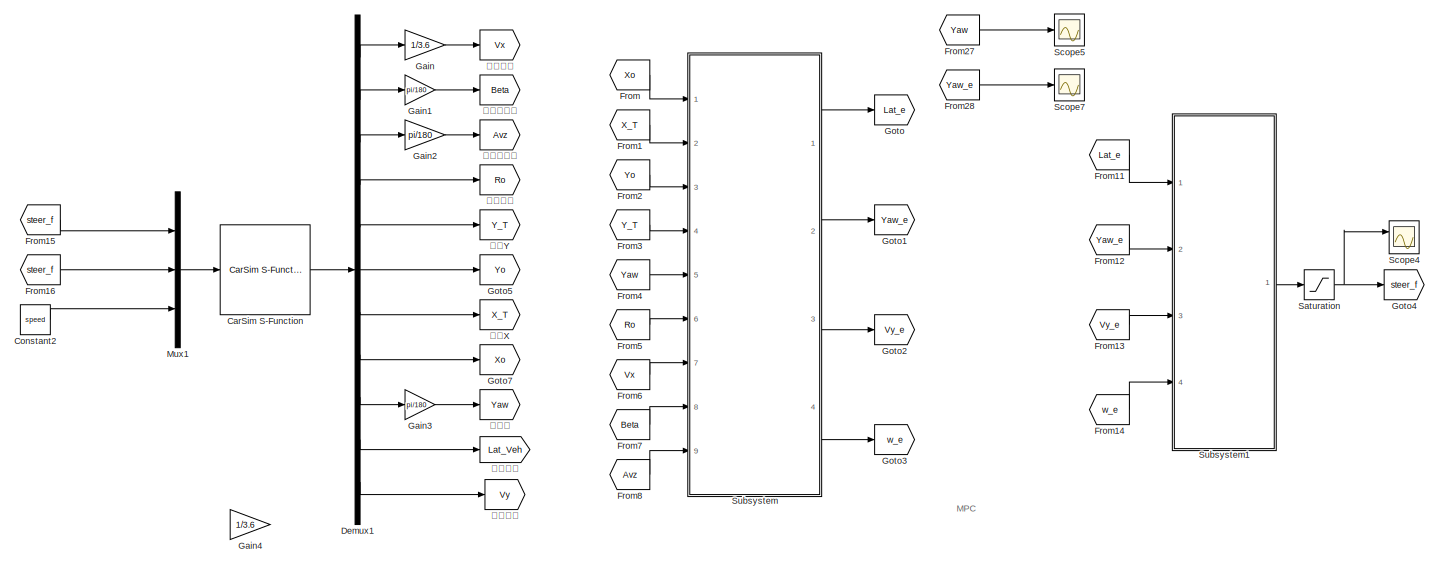
[diagram: root canvas - part 1/4, top left region]
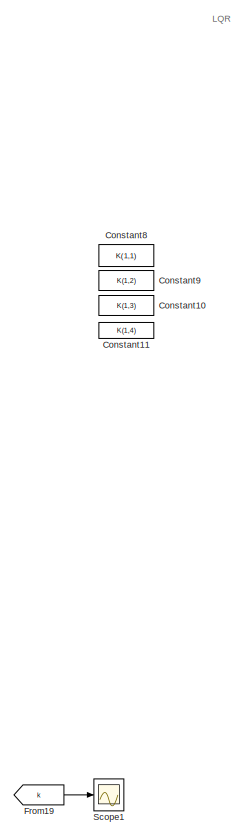
[diagram: root canvas - part 2/4, central region]
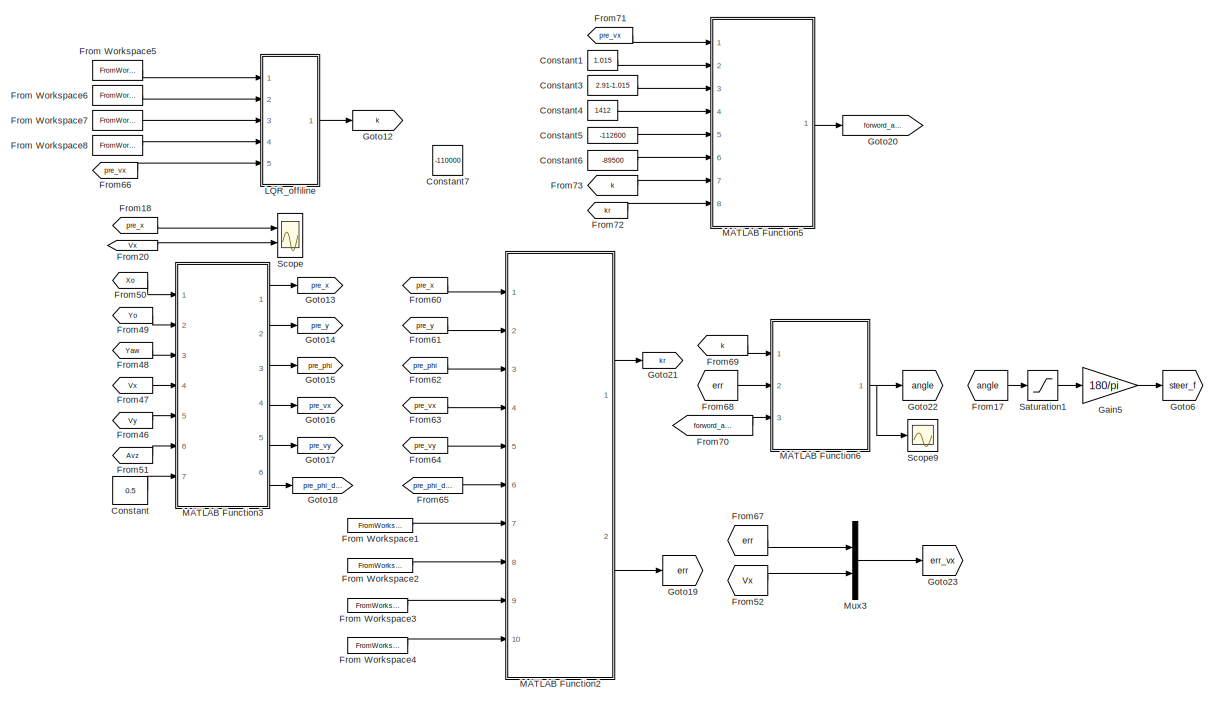
[diagram: root canvas - part 3/4, top right region]
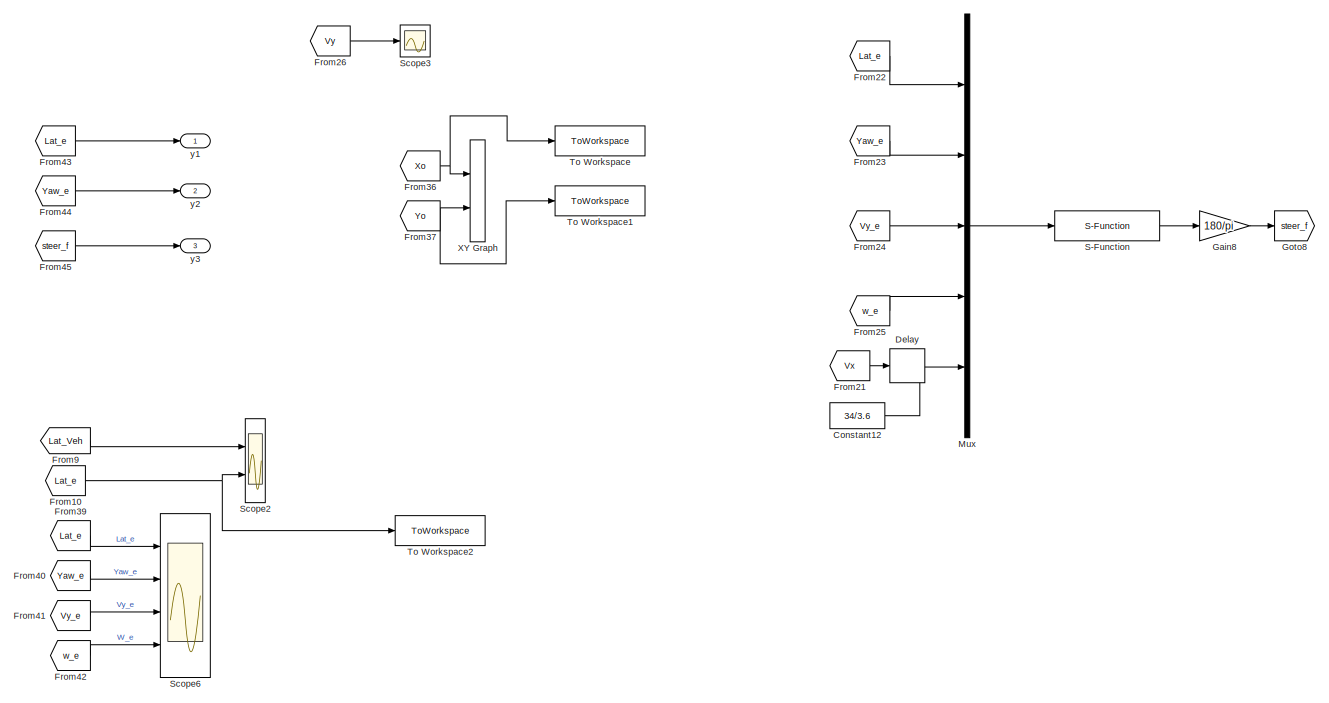
[diagram: root canvas - part 4/4, bottom left region]
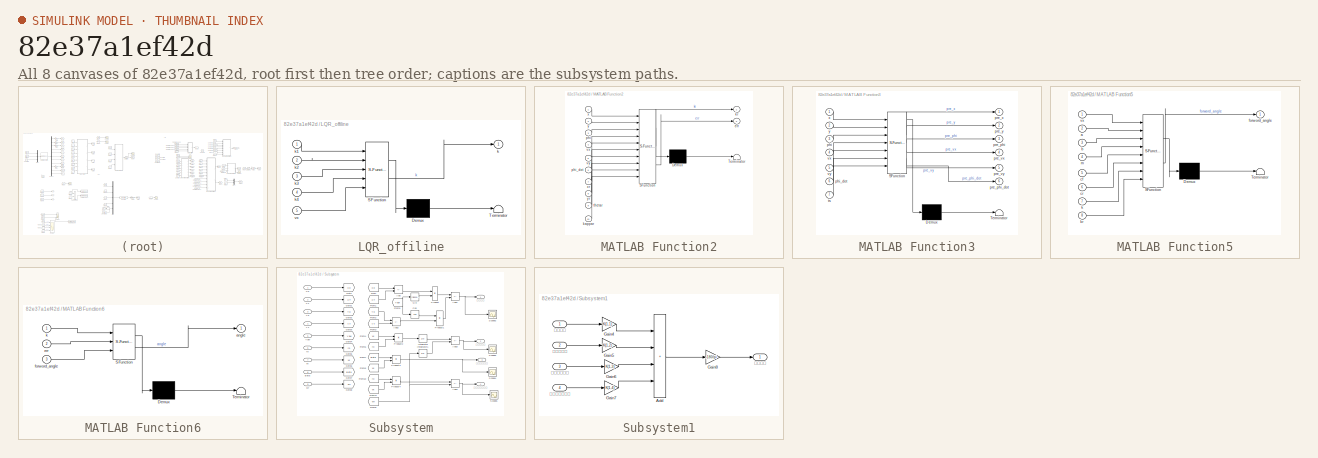
[diagram: thumbnail index - all 8 canvases of the model, root first then tree order]
MODEL slx_82e37a1ef42d
KIND model
CONFIG AbsTol = auto
CONFIG EnableMultiTasking = off
CONFIG FixedStep = auto
CONFIG MaxStep = auto
CONFIG MinStep = auto
CONFIG RelTol = 1e-3
CONFIG SampleTimeConstraint = Unconstrained
CONFIG SolverName = VariableStepAuto
CONFIG StartTime = 0.0
CONFIG StopTime = 4
BLOCK [Reference] CarSim S-Function  REF=Solver_SF/CarSim S-Function
  Ports = [1, 1]
  Priority = 1
  SourceBlock = Solver_SF/CarSim S-Function
  SourceProductName = CarSim S-Function
  SourceType = Vehicle math model library
BLOCK [Constant] Constant
  Commented = on
  Value = 0.5
BLOCK [Constant] Constant1
  Commented = on
  Value = 1.015
BLOCK [Constant] Constant10
  Commented = on
  Value = K(1,3)
BLOCK [Constant] Constant11
  Commented = on
  Value = K(1,4)
BLOCK [Constant] Constant12
  Commented = on
  Value = 34/3.6
BLOCK [Constant] Constant2
  Value = speed
BLOCK [Constant] Constant3
  Commented = on
  Value = 2.91-1.015
BLOCK [Constant] Constant4
  Commented = on
  Value = 1412
BLOCK [Constant] Constant5
  Commented = on
  Value = -112600
BLOCK [Constant] Constant6
  Commented = on
  Value = -89500
BLOCK [Constant] Constant7
  Commented = on
  Value = -110000
BLOCK [Constant] Constant8
  Commented = on
  Value = K(1,1)
BLOCK [Constant] Constant9
  Commented = on
  Value = K(1,2)
BLOCK [Delay] Delay
  Commented = on
  InputPortMap = u0
  Ports = [1, 1]
BLOCK [Demux] Demux1
  Outputs = 11
  Ports = [1, 11]
BLOCK [From] From
  GotoTag = Xo
BLOCK [FromWorkspace] From Workspace1
  Commented = on
  VariableName = xr
BLOCK [FromWorkspace] From Workspace2
  Commented = on
  VariableName = yr
BLOCK [FromWorkspace] From Workspace3
  Commented = on
  VariableName = thetar
BLOCK [FromWorkspace] From Workspace4
  Commented = on
  VariableName = kappar
BLOCK [FromWorkspace] From Workspace5
  Commented = on
  VariableName = k1
BLOCK [FromWorkspace] From Workspace6
  Commented = on
  VariableName = k2
BLOCK [FromWorkspace] From Workspace7
  Commented = on
  VariableName = k3
BLOCK [FromWorkspace] From Workspace8
  Commented = on
  VariableName = k4
BLOCK [From] From1
  GotoTag = X_T
BLOCK [From] From10
  GotoTag = Lat_e
BLOCK [From] From11
  GotoTag = Lat_e
BLOCK [From] From12
  GotoTag = Yaw_e
BLOCK [From] From13
  GotoTag = Vy_e
BLOCK [From] From14
  GotoTag = w_e
BLOCK [From] From15
  GotoTag = steer_f
BLOCK [From] From16
  GotoTag = steer_f
BLOCK [From] From17
  Commented = on
  GotoTag = angle
BLOCK [From] From18
  Commented = on
  GotoTag = pre_x
BLOCK [From] From19
  Commented = on
  GotoTag = k
BLOCK [From] From2
  GotoTag = Yo
BLOCK [From] From20
  Commented = on
  GotoTag = Vx
BLOCK [From] From21
  Commented = on
  GotoTag = Vx
BLOCK [From] From22
  Commented = on
  GotoTag = Lat_e
BLOCK [From] From23
  Commented = on
  GotoTag = Yaw_e
BLOCK [From] From24
  Commented = on
  GotoTag = Vy_e
BLOCK [From] From25
  Commented = on
  GotoTag = w_e
BLOCK [From] From26
  GotoTag = Vy
BLOCK [From] From27
  GotoTag = Yaw
BLOCK [From] From28
  GotoTag = Yaw_e
BLOCK [From] From3
  GotoTag = Y_T
BLOCK [From] From36
  GotoTag = Xo
BLOCK [From] From37
  GotoTag = Yo
BLOCK [From] From39
  GotoTag = Lat_e
BLOCK [From] From4
  GotoTag = Yaw
BLOCK [From] From40
  GotoTag = Yaw_e
BLOCK [From] From41
  GotoTag = Vy_e
BLOCK [From] From42
  GotoTag = w_e
BLOCK [From] From43
  GotoTag = Lat_e
BLOCK [From] From44
  GotoTag = Yaw_e
BLOCK [From] From45
  GotoTag = steer_f
BLOCK [From] From46
  Commented = on
  GotoTag = Vy
BLOCK [From] From47
  Commented = on
  GotoTag = Vx
BLOCK [From] From48
  Commented = on
  GotoTag = Yaw
BLOCK [From] From49
  Commented = on
  GotoTag = Yo
BLOCK [From] From5
  GotoTag = Ro
BLOCK [From] From50
  Commented = on
  GotoTag = Xo
BLOCK [From] From51
  Commented = on
  GotoTag = Avz
BLOCK [From] From52
  Commented = on
  GotoTag = Vx
BLOCK [From] From6
  GotoTag = Vx
BLOCK [From] From60
  Commented = on
  GotoTag = pre_x
BLOCK [From] From61
  Commented = on
  GotoTag = pre_y
BLOCK [From] From62
  Commented = on
  GotoTag = pre_phi
BLOCK [From] From63
  Commented = on
  GotoTag = pre_vx
BLOCK [From] From64
  Commented = on
  GotoTag = pre_vy
BLOCK [From] From65
  Commented = on
  GotoTag = pre_phi_dot
BLOCK [From] From66
  Commented = on
  GotoTag = pre_vx
BLOCK [From] From67
  Commented = on
  GotoTag = err
BLOCK [From] From68
  Commented = on
  GotoTag = err
BLOCK [From] From69
  Commented = on
  GotoTag = k
BLOCK [From] From7
  GotoTag = Beta
BLOCK [From] From70
  Commented = on
  GotoTag = forword_angle
BLOCK [From] From71
  Commented = on
  GotoTag = pre_vx
BLOCK [From] From72
  Commented = on
  GotoTag = kr
BLOCK [From] From73
  Commented = on
  GotoTag = k
BLOCK [From] From8
  GotoTag = Avz
BLOCK [From] From9
  GotoTag = Lat_Veh
BLOCK [Gain] Gain
  Gain = 1/3.6
BLOCK [Gain] Gain1
  Gain = pi/180
BLOCK [Gain] Gain2
  Gain = pi/180
BLOCK [Gain] Gain3
  Gain = pi/180
BLOCK [Gain] Gain4
  Gain = 1/3.6
BLOCK [Gain] Gain5
  Commented = on
  Gain = 180/pi
BLOCK [Gain] Gain8
  Commented = on
  Gain = 180/pi
BLOCK [Goto] Goto
  GotoTag = Lat_e
BLOCK [Goto] Goto1
  GotoTag = Yaw_e
BLOCK [Goto] Goto12
  Commented = on
  GotoTag = k
BLOCK [Goto] Goto13
  Commented = on
  GotoTag = pre_x
BLOCK [Goto] Goto14
  Commented = on
  GotoTag = pre_y
BLOCK [Goto] Goto15
  Commented = on
  GotoTag = pre_phi
BLOCK [Goto] Goto16
  Commented = on
  GotoTag = pre_vx
BLOCK [Goto] Goto17
  Commented = on
  GotoTag = pre_vy
BLOCK [Goto] Goto18
  Commented = on
  GotoTag = pre_phi_dot
BLOCK [Goto] Goto19
  Commented = on
  GotoTag = err
BLOCK [Goto] Goto2
  GotoTag = Vy_e
BLOCK [Goto] Goto20
  Commented = on
  GotoTag = forword_angle
BLOCK [Goto] Goto21
  Commented = on
  GotoTag = kr
BLOCK [Goto] Goto22
  Commented = on
  GotoTag = angle
BLOCK [Goto] Goto23
  Commented = on
  GotoTag = err_vx
BLOCK [Goto] Goto3
  GotoTag = w_e
BLOCK [Goto] Goto4
  GotoTag = steer_f
BLOCK [Goto] Goto5
  GotoTag = Yo
BLOCK [Goto] Goto6
  Commented = on
  GotoTag = steer_f
BLOCK [Goto] Goto7
  GotoTag = Xo
BLOCK [Goto] Goto8
  Commented = on
  GotoTag = steer_f
BLOCK [SubSystem] LQR_offiline
  Commented = on
  ErrorFcn = Stateflow.Translate.translate
  PermitHierarchicalResolution = ExplicitOnly
  Ports = [5, 1]
  RequestExecContextInheritance = off
  SFBlockType = MATLAB Function
  TreatAsAtomicUnit = on
BLOCK [Demux] LQR_offiline/ Demux 
  Outputs = 1
  Ports = [1, 1]
BLOCK [S-Function] LQR_offiline/ SFunction 
  EnableBusSupport = on
  FunctionName = sf_sfun
  PortCounts = [5 2]
  Ports = [5, 2]
  SFcnIsStateOwnerBlock = off
  SFunctionDeploymentMode = off
  Tag = Stateflow S-Function 8
BLOCK [Terminator] LQR_offiline/ Terminator 
BLOCK [Outport] LQR_offiline/k
BLOCK [Inport] LQR_offiline/k1
BLOCK [Inport] LQR_offiline/k2
  Port = 2
BLOCK [Inport] LQR_offiline/k3
  Port = 3
BLOCK [Inport] LQR_offiline/k4
  Port = 4
BLOCK [Inport] LQR_offiline/vx
  Port = 5
BLOCK [SubSystem] MATLAB Function2
  Commented = on
  ErrorFcn = Stateflow.Translate.translate
  PermitHierarchicalResolution = ExplicitOnly
  Ports = [10, 2]
  RequestExecContextInheritance = off
  SFBlockType = MATLAB Function
  TreatAsAtomicUnit = on
BLOCK [Demux] MATLAB Function2/ Demux 
  Outputs = 1
  Ports = [1, 1]
BLOCK [S-Function] MATLAB Function2/ SFunction 
  EnableBusSupport = on
  FunctionName = sf_sfun
  PortCounts = [10 3]
  Ports = [10, 3]
  SFcnIsStateOwnerBlock = off
  SFunctionDeploymentMode = off
  Tag = Stateflow S-Function 6
BLOCK [Terminator] MATLAB Function2/ Terminator 
BLOCK [Outport] MATLAB Function2/err
  Port = 2
BLOCK [Inport] MATLAB Function2/kappar
  Port = 10
BLOCK [Outport] MATLAB Function2/kr
BLOCK [Inport] MATLAB Function2/phi
  Port = 3
BLOCK [Inport] MATLAB Function2/phi_dot
  Port = 6
BLOCK [Inport] MATLAB Function2/thetar
  Port = 9
BLOCK [Inport] MATLAB Function2/vx
  Port = 4
BLOCK [Inport] MATLAB Function2/vy
  Port = 5
BLOCK [Inport] MATLAB Function2/x
BLOCK [Inport] MATLAB Function2/xr
  Port = 7
BLOCK [Inport] MATLAB Function2/y
  Port = 2
BLOCK [Inport] MATLAB Function2/yr
  Port = 8
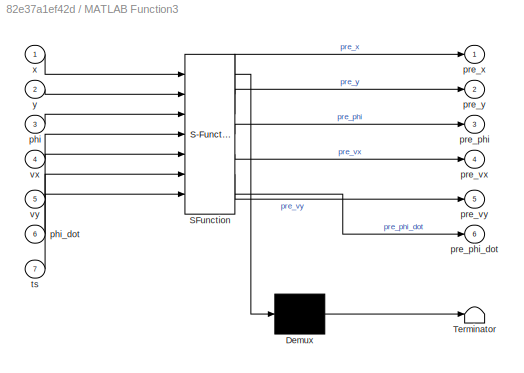
BLOCK [SubSystem] MATLAB Function3
  Commented = on
  ErrorFcn = Stateflow.Translate.translate
  PermitHierarchicalResolution = ExplicitOnly
  Ports = [7, 6]
  RequestExecContextInheritance = off
  SFBlockType = MATLAB Function
  TreatAsAtomicUnit = on
BLOCK [Demux] MATLAB Function3/ Demux 
  Outputs = 1
  Ports = [1, 1]
BLOCK [S-Function] MATLAB Function3/ SFunction 
  EnableBusSupport = on
  FunctionName = sf_sfun
  PortCounts = [7 7]
  Ports = [7, 7]
  SFcnIsStateOwnerBlock = off
  SFunctionDeploymentMode = off
  Tag = Stateflow S-Function 7
BLOCK [Terminator] MATLAB Function3/ Terminator 
BLOCK [Inport] MATLAB Function3/phi
  Port = 3
BLOCK [Inport] MATLAB Function3/phi_dot
  Port = 6
BLOCK [Outport] MATLAB Function3/pre_phi
  Port = 3
BLOCK [Outport] MATLAB Function3/pre_phi_dot
  Port = 6
BLOCK [Outport] MATLAB Function3/pre_vx
  Port = 4
BLOCK [Outport] MATLAB Function3/pre_vy
  Port = 5
BLOCK [Outport] MATLAB Function3/pre_x
BLOCK [Outport] MATLAB Function3/pre_y
  Port = 2
BLOCK [Inport] MATLAB Function3/ts
  Port = 7
BLOCK [Inport] MATLAB Function3/vx
  Port = 4
BLOCK [Inport] MATLAB Function3/vy
  Port = 5
BLOCK [Inport] MATLAB Function3/x
BLOCK [Inport] MATLAB Function3/y
  Port = 2
BLOCK [SubSystem] MATLAB Function5
  Commented = on
  ErrorFcn = Stateflow.Translate.translate
  PermitHierarchicalResolution = ExplicitOnly
  Ports = [8, 1]
  RequestExecContextInheritance = off
  SFBlockType = MATLAB Function
  TreatAsAtomicUnit = on
BLOCK [Demux] MATLAB Function5/ Demux 
  Outputs = 1
  Ports = [1, 1]
BLOCK [S-Function] MATLAB Function5/ SFunction 
  EnableBusSupport = on
  FunctionName = sf_sfun
  PortCounts = [8 2]
  Ports = [8, 2]
  SFcnIsStateOwnerBlock = off
  SFunctionDeploymentMode = off
  Tag = Stateflow S-Function 9
BLOCK [Terminator] MATLAB Function5/ Terminator 
BLOCK [Inport] MATLAB Function5/a
  Port = 2
BLOCK [Inport] MATLAB Function5/b
  Port = 3
BLOCK [Inport] MATLAB Function5/cf
  Port = 5
BLOCK [Inport] MATLAB Function5/cr
  Port = 6
BLOCK [Outport] MATLAB Function5/forword_angle
  VectorParamsAs1DForOutWhenUnconnected = off
BLOCK [Inport] MATLAB Function5/k
  Port = 7
BLOCK [Inport] MATLAB Function5/kr
  Port = 8
BLOCK [Inport] MATLAB Function5/m
  Port = 4
BLOCK [Inport] MATLAB Function5/vx
BLOCK [SubSystem] MATLAB Function6
  Commented = on
  ErrorFcn = Stateflow.Translate.translate
  PermitHierarchicalResolution = ExplicitOnly
  Ports = [3, 1]
  RequestExecContextInheritance = off
  SFBlockType = MATLAB Function
  TreatAsAtomicUnit = on
BLOCK [Demux] MATLAB Function6/ Demux 
  Outputs = 1
  Ports = [1, 1]
BLOCK [S-Function] MATLAB Function6/ SFunction 
  EnableBusSupport = on
  FunctionName = sf_sfun
  PortCounts = [3 2]
  Ports = [3, 2]
  SFcnIsStateOwnerBlock = off
  SFunctionDeploymentMode = off
  Tag = Stateflow S-Function 10
BLOCK [Terminator] MATLAB Function6/ Terminator 
BLOCK [Outport] MATLAB Function6/angle
BLOCK [Inport] MATLAB Function6/err
  Port = 2
BLOCK [Inport] MATLAB Function6/forword_angle
  Port = 3
BLOCK [Inport] MATLAB Function6/k
BLOCK [Mux] Mux
  Commented = on
  DisplayOption = bar
  Inputs = 5
  Ports = [5, 1]
BLOCK [Mux] Mux1
  DisplayOption = bar
  Inputs = 3
  Ports = [3, 1]
BLOCK [Mux] Mux3
  Commented = on
  DisplayOption = bar
  Inputs = 2
  Ports = [2, 1]
BLOCK [S-Function] S-Function
  Commented = on
  EnableBusSupport = off
  FunctionName = mpc_car_dong_li_xue
  Ports = [1, 1]
  SFcnIsStateOwnerBlock = off
  SFunctionDeploymentMode = off
BLOCK [Saturate] Saturation
  LowerLimit = -30
  UpperLimit = 30
BLOCK [Saturate] Saturation1
  Commented = on
  LowerLimit = -40
  UpperLimit = 40
BLOCK [Scope] Scope
  Commented = on
  Floating = off
  NumInputPorts = 2
  Ports = [2]
  ScopeSpecificationString = Simulink.scopes.TimeScopeBlockCfg('CurrentConfiguration', extmgr.ConfigurationSet(extmgr.Configuration('Core','General UI',true),extmgr.Configuration('Core','Source UI',true),extmgr.Configuration('Sources','WiredSimulink',true,'DataLoggingVariableName','ScopeData1'),extmgr.Configuration('Visuals','Time Domain',true,'SerializedDisplays',{struct('MinYLimReal','-1.07501','MaxYLimReal','9.67513','YLab...<+1403ch>
BLOCK [Scope] Scope1
  Commented = on
  Floating = off
  NumInputPorts = 1
  Ports = [1]
  ScopeSpecificationString = Simulink.scopes.TimeScopeBlockCfg('CurrentConfiguration', extmgr.ConfigurationSet(extmgr.Configuration('Core','General UI',true),extmgr.Configuration('Core','Source UI',true),extmgr.Configuration('Sources','WiredSimulink',true,'DataLoggingVariableName','ScopeData2'),extmgr.Configuration('Visuals','Time Domain',true,'SerializedDisplays',{struct('MinYLimReal','0.12559','MaxYLimReal','0.20808','YLabe...<+1461ch>
BLOCK [Scope] Scope2
  Floating = off
  NumInputPorts = 2
  Ports = [2]
  ScopeSpecificationString = Simulink.scopes.TimeScopeBlockCfg('CurrentConfiguration', extmgr.ConfigurationSet(extmgr.Configuration('Core','General UI',true),extmgr.Configuration('Core','Source UI',true),extmgr.Configuration('Sources','WiredSimulink',true,'DataLoggingVariableName','ScopeData2'),extmgr.Configuration('Visuals','Time Domain',true,'SerializedDisplays',{struct('MinYLimReal','-0.07342','MaxYLimReal','0.11658','YLab...<+1409ch>
BLOCK [Scope] Scope3
  Floating = off
  NumInputPorts = 1
  Ports = [1]
  ScopeSpecificationString = Simulink.scopes.TimeScopeBlockCfg('CurrentConfiguration', extmgr.ConfigurationSet(extmgr.Configuration('Core','General UI',true),extmgr.Configuration('Core','Source UI',true),extmgr.Configuration('Sources','WiredSimulink',true,'DataLoggingVariableName','ScopeData1'),extmgr.Configuration('Visuals','Time Domain',true,'SerializedDisplays',{struct('MinYLimReal','-0.00000007','MaxYLimReal','0.00000066'...<+1392ch>
BLOCK [Scope] Scope4
  Floating = off
  NumInputPorts = 2
  Ports = [2]
  ScopeSpecificationString = Simulink.scopes.TimeScopeBlockCfg('CurrentConfiguration', extmgr.ConfigurationSet(extmgr.Configuration('Core','General UI',true),extmgr.Configuration('Core','Source UI',true),extmgr.Configuration('Sources','WiredSimulink',true,'DataLoggingVariableName','ScopeData1'),extmgr.Configuration('Visuals','Time Domain',true,'SerializedDisplays',{struct('MinYLimReal','-1.29623','MaxYLimReal','11.66605','YLa...<+1409ch>
BLOCK [Scope] Scope5
  Floating = off
  NumInputPorts = 1
  Ports = [1]
  ScopeSpecificationString = Simulink.scopes.TimeScopeBlockCfg('CurrentConfiguration', extmgr.ConfigurationSet(extmgr.Configuration('Core','General UI',true),extmgr.Configuration('Core','Source UI',true),extmgr.Configuration('Sources','WiredSimulink',true,'DataLoggingVariableName','ScopeData1'),extmgr.Configuration('Visuals','Time Domain',true,'SerializedDisplays',{struct('MinYLimReal','-0.08246','MaxYLimReal','0.74213','YLab...<+1364ch>
BLOCK [Scope] Scope6
  Floating = off
  NumInputPorts = 4
  Ports = [4]
  ScopeSpecificationString = Simulink.scopes.TimeScopeBlockCfg('CurrentConfiguration', extmgr.ConfigurationSet(extmgr.Configuration('Core','General UI',true),extmgr.Configuration('Core','Source UI',true),extmgr.Configuration('Sources','WiredSimulink',true,'DataLoggingVariableName','ScopeData3'),extmgr.Configuration('Visuals','Time Domain',true,'SerializedDisplays',{struct('MinYLimReal','-0.25213','MaxYLimReal','0.41731','YLab...<+1412ch>
BLOCK [Scope] Scope7
  Floating = off
  NumInputPorts = 1
  Ports = [1]
  ScopeSpecificationString = Simulink.scopes.TimeScopeBlockCfg('CurrentConfiguration', extmgr.ConfigurationSet(extmgr.Configuration('Core','General UI',true),extmgr.Configuration('Core','Source UI',true),extmgr.Configuration('Sources','WiredSimulink',true,'DataLoggingVariableName','ScopeData2'),extmgr.Configuration('Visuals','Time Domain',true,'SerializedDisplays',{struct('MinYLimReal','-0.08249','MaxYLimReal','0.01507','YLab...<+1370ch>
BLOCK [Scope] Scope9
  Commented = on
  Floating = off
  NumInputPorts = 1
  Ports = [1]
  ScopeSpecificationString = Simulink.scopes.TimeScopeBlockCfg('CurrentConfiguration', extmgr.ConfigurationSet(extmgr.Configuration('Core','General UI',true),extmgr.Configuration('Core','Source UI',true),extmgr.Configuration('Sources','WiredSimulink',true,'DataLoggingVariableName','ScopeData1'),extmgr.Configuration('Visuals','Time Domain',true,'SerializedDisplays',{struct('MinYLimReal','-3.56779','MaxYLimReal','3.66195','YLab...<+1452ch>
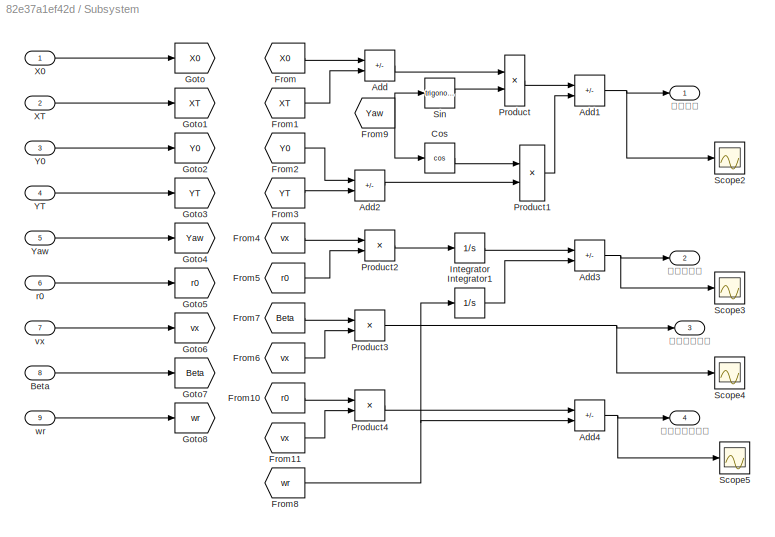
BLOCK [SubSystem] Subsystem
  Ports = [9, 4]
  RequestExecContextInheritance = off
BLOCK [Sum] Subsystem/Add
  IconShape = rectangular
  Inputs = +-
  Ports = [2, 1]
BLOCK [Sum] Subsystem/Add1
  IconShape = rectangular
  Inputs = -+
  Ports = [2, 1]
BLOCK [Sum] Subsystem/Add2
  IconShape = rectangular
  Inputs = +-
  Ports = [2, 1]
BLOCK [Sum] Subsystem/Add3
  IconShape = rectangular
  Inputs = -+
  Ports = [2, 1]
BLOCK [Sum] Subsystem/Add4
  IconShape = rectangular
  Inputs = -+
  Ports = [2, 1]
BLOCK [Inport] Subsystem/Beta
  Port = 8
BLOCK [Trigonometry] Subsystem/Cos
  Operator = cos
  Ports = [1, 1]
BLOCK [From] Subsystem/From
  GotoTag = X0
BLOCK [From] Subsystem/From1
  GotoTag = XT
BLOCK [From] Subsystem/From10
  GotoTag = r0
BLOCK [From] Subsystem/From11
  GotoTag = vx
BLOCK [From] Subsystem/From2
  GotoTag = Y0
BLOCK [From] Subsystem/From3
  GotoTag = YT
BLOCK [From] Subsystem/From4
  GotoTag = vx
BLOCK [From] Subsystem/From5
  GotoTag = r0
BLOCK [From] Subsystem/From6
  GotoTag = vx
BLOCK [From] Subsystem/From7
  GotoTag = Beta
BLOCK [From] Subsystem/From8
  GotoTag = wr
BLOCK [From] Subsystem/From9
  GotoTag = Yaw
BLOCK [Goto] Subsystem/Goto
  GotoTag = X0
BLOCK [Goto] Subsystem/Goto1
  GotoTag = XT
BLOCK [Goto] Subsystem/Goto2
  GotoTag = Y0
BLOCK [Goto] Subsystem/Goto3
  GotoTag = YT
BLOCK [Goto] Subsystem/Goto4
  GotoTag = Yaw
BLOCK [Goto] Subsystem/Goto5
  GotoTag = r0
BLOCK [Goto] Subsystem/Goto6
  GotoTag = vx
BLOCK [Goto] Subsystem/Goto7
  GotoTag = Beta
BLOCK [Goto] Subsystem/Goto8
  GotoTag = wr
BLOCK [Integrator] Subsystem/Integrator
  Ports = [1, 1]
BLOCK [Integrator] Subsystem/Integrator1
  Ports = [1, 1]
BLOCK [Product] Subsystem/Product
  Ports = [2, 1]
BLOCK [Product] Subsystem/Product1
  Ports = [2, 1]
BLOCK [Product] Subsystem/Product2
  Ports = [2, 1]
BLOCK [Product] Subsystem/Product3
  Ports = [2, 1]
BLOCK [Product] Subsystem/Product4
  Ports = [2, 1]
BLOCK [Scope] Subsystem/Scope2
  Floating = off
  NumInputPorts = 1
  Ports = [1]
  ScopeSpecificationString = Simulink.scopes.TimeScopeBlockCfg('CurrentConfiguration', extmgr.ConfigurationSet(extmgr.Configuration('Core','General UI',true),extmgr.Configuration('Core','Source UI',true),extmgr.Configuration('Sources','WiredSimulink',true,'DataLoggingVariableName','ScopeData1'),extmgr.Configuration('Visuals','Time Domain',true,'SerializedDisplays',{struct('MinYLimReal','-2.03043','MaxYLimReal','2.21979','YLab...<+1363ch>
BLOCK [Scope] Subsystem/Scope3
  Floating = off
  NumInputPorts = 1
  Ports = [1]
  ScopeSpecificationString = Simulink.scopes.TimeScopeBlockCfg('CurrentConfiguration', extmgr.ConfigurationSet(extmgr.Configuration('Core','General UI',true),extmgr.Configuration('Core','Source UI',true),extmgr.Configuration('Sources','WiredSimulink',true,'DataLoggingVariableName','ScopeData2'),extmgr.Configuration('Visuals','Time Domain',true,'SerializedDisplays',{struct('MinYLimReal','-0.25737','MaxYLimReal','0.23589','YLab...<+1363ch>
BLOCK [Scope] Subsystem/Scope4
  Floating = off
  NumInputPorts = 1
  Ports = [1]
  ScopeSpecificationString = Simulink.scopes.TimeScopeBlockCfg('CurrentConfiguration', extmgr.ConfigurationSet(extmgr.Configuration('Core','General UI',true),extmgr.Configuration('Core','Source UI',true),extmgr.Configuration('Sources','WiredSimulink',true,'DataLoggingVariableName','ScopeData3'),extmgr.Configuration('Visuals','Time Domain',true),extmgr.Configuration('Tools','Plot Navigation',true),extmgr.Configuration('Tools',...<+40ch>
BLOCK [Scope] Subsystem/Scope5
  Floating = off
  NumInputPorts = 1
  Ports = [1]
  ScopeSpecificationString = Simulink.scopes.TimeScopeBlockCfg('CurrentConfiguration', extmgr.ConfigurationSet(extmgr.Configuration('Core','General UI',true),extmgr.Configuration('Core','Source UI',true),extmgr.Configuration('Sources','WiredSimulink',true,'DataLoggingVariableName','ScopeData4'),extmgr.Configuration('Visuals','Time Domain',true),extmgr.Configuration('Tools','Plot Navigation',true),extmgr.Configuration('Tools',...<+40ch>
BLOCK [Trigonometry] Subsystem/Sin
  Ports = [1, 1]
BLOCK [Inport] Subsystem/X0
BLOCK [Inport] Subsystem/XT
  Port = 2
BLOCK [Inport] Subsystem/Y0
  Port = 3
BLOCK [Inport] Subsystem/YT
  Port = 4
BLOCK [Inport] Subsystem/Yaw
  Port = 5
BLOCK [Inport] Subsystem/r0
  Port = 6
BLOCK [Inport] Subsystem/vx
  Port = 7
BLOCK [Inport] Subsystem/wr
  Port = 9
BLOCK [Outport] Subsystem/侧向速度偏差
  Port = 3
BLOCK [Outport] Subsystem/横向偏差
BLOCK [Outport] Subsystem/横摆角速度偏差
  Port = 4
BLOCK [Outport] Subsystem/航向角偏差
  Port = 2
BLOCK [SubSystem] Subsystem1
  Ports = [4, 1]
  RequestExecContextInheritance = off
BLOCK [Sum] Subsystem1/Add
  IconShape = rectangular
  Inputs = ++++
  Ports = [4, 1]
BLOCK [Gain] Subsystem1/Gain4
  Gain = K(1,1)
BLOCK [Gain] Subsystem1/Gain5
  Gain = K(1,2)
BLOCK [Gain] Subsystem1/Gain6
  Gain = K(1,3)
BLOCK [Gain] Subsystem1/Gain7
  Gain = K(1,4)
BLOCK [Gain] Subsystem1/Gain8
  Gain = -180/pi
BLOCK [Inport] Subsystem1/侧向速度偏差
  Port = 3
BLOCK [Outport] Subsystem1/前轮转角
BLOCK [Inport] Subsystem1/横向偏差
BLOCK [Inport] Subsystem1/横摆角速度偏差
  Port = 4
BLOCK [Inport] Subsystem1/航向角偏差
  Port = 2
BLOCK [ToWorkspace] To Workspace
  FixptAsFi = on
  MaxDataPoints = inf
  Ports = [1]
  SampleTime = -1
  Save2DSignal = 2-D array (concatenate along first dimension)
  VariableName = xo
BLOCK [ToWorkspace] To Workspace1
  FixptAsFi = on
  MaxDataPoints = inf
  Ports = [1]
  SampleTime = -1
  Save2DSignal = 2-D array (concatenate along first dimension)
  VariableName = yo
BLOCK [ToWorkspace] To Workspace2
  FixptAsFi = on
  MaxDataPoints = inf
  Ports = [1]
  SampleTime = -1
  Save2DSignal = 2-D array (concatenate along first dimension)
  VariableName = lat_e
BLOCK [Record] XY Graph
  CompatibilityTag = XY
  FileSettingsInternal = {"entries":[{"content":{"excelSettings":{"content":{},"type":"Streamout.ExcelSettings"}},"type":"Streamout.FileSettingStorage","uuid":""}],"packageUris":["http:\/\/schema.mathworks.com\/mf0\/streamout_blocks\/R2020a"],"version":"1.0"}
  Layout = [1 1]
  Ports = [2]
  SignalsInternal = {"entries":[{"content":{"signals":[{"content":{"blockPath":[],"channel":[],"dimensions":[1],"domain":"","lineColor":"#fe330a","plots":[],"port":1,"sid":[""],"signalID":1067719,"signalName":"From36"},"type":"RecordBlkView.Signal","uuid":""},{"content":{"blockPath":[],"channel":[],"dimensions":[1],"domain":"","lineColor":"#22b573","plots":[],"port":2,"sid":[""],"signalID":1067723,"signalName":"From3...<+190ch>
  VisualizationBindings = {"xyplotplugin":{"info":[{"series":[],"subplotID":1}]}}
BLOCK [Outport] y1
BLOCK [Outport] y2
  Port = 2
BLOCK [Outport] y3
  Port = 3
BLOCK [Goto] 横向误差
  GotoTag = Lat_Veh
BLOCK [Goto] 横向车速
  GotoTag = Vy
BLOCK [Goto] 横摆角速度
  GotoTag = Avz
BLOCK [Goto] 目标X
  GotoTag = X_T
BLOCK [Goto] 目标Y
  GotoTag = Y_T
BLOCK [Goto] 纵向车速
  GotoTag = Vx
BLOCK [Goto] 航向角
  GotoTag = Yaw
BLOCK [Goto] 质心侧偏角
  GotoTag = Beta
BLOCK [Goto] 路径曲率
  GotoTag = Ro
ANNOTATION (root): LQR
ANNOTATION (root): MPC
LINE CarSim S-Function:1 -> Demux1:1
LINE Constant12:1 -> Mux:5
LINE Constant1:1 -> MATLAB Function5:2
LINE Constant2:1 -> Mux1:3
LINE Constant3:1 -> MATLAB Function5:3
LINE Constant4:1 -> MATLAB Function5:4
LINE Constant5:1 -> MATLAB Function5:5
LINE Constant6:1 -> MATLAB Function5:6
LINE Constant:1 -> MATLAB Function3:7
LINE Demux1:1 -> Gain:1
LINE Demux1:10 -> 横向误差:1
LINE Demux1:11 -> 横向车速:1
LINE Demux1:2 -> Gain1:1
LINE Demux1:3 -> Gain2:1
LINE Demux1:4 -> 路径曲率:1
LINE Demux1:5 -> 目标Y:1
LINE Demux1:6 -> Goto5:1
LINE Demux1:7 -> 目标X:1
LINE Demux1:8 -> Goto7:1
LINE Demux1:9 -> Gain3:1
LINE From Workspace1:1 -> MATLAB Function2:7
LINE From Workspace2:1 -> MATLAB Function2:8
LINE From Workspace3:1 -> MATLAB Function2:9
LINE From Workspace4:1 -> MATLAB Function2:10
LINE From Workspace5:1 -> LQR_offiline:1
LINE From Workspace6:1 -> LQR_offiline:2
LINE From Workspace7:1 -> LQR_offiline:3
LINE From Workspace8:1 -> LQR_offiline:4
NET From10:1 -> Scope2:2, To Workspace2:1
LINE From11:1 -> Subsystem1:1
LINE From12:1 -> Subsystem1:2
LINE From13:1 -> Subsystem1:3
LINE From14:1 -> Subsystem1:4
LINE From15:1 -> Mux1:1
LINE From16:1 -> Mux1:2
LINE From17:1 -> Saturation1:1
LINE From18:1 -> Scope:1
LINE From19:1 -> Scope1:1
LINE From1:1 -> Subsystem:2
LINE From20:1 -> Scope:2
LINE From21:1 -> Delay:1
LINE From22:1 -> Mux:1
LINE From23:1 -> Mux:2
LINE From24:1 -> Mux:3
LINE From25:1 -> Mux:4
LINE From26:1 -> Scope3:1
LINE From27:1 -> Scope5:1
LINE From28:1 -> Scope7:1
LINE From2:1 -> Subsystem:3
NET From36:1 -> To Workspace:1, XY Graph:1
NET From37:1 -> To Workspace1:1, XY Graph:2
LINE From39:1 -> Scope6:1
LINE From3:1 -> Subsystem:4
LINE From40:1 -> Scope6:2
LINE From41:1 -> Scope6:3
LINE From42:1 -> Scope6:4
LINE From43:1 -> y1:1
LINE From44:1 -> y2:1
LINE From45:1 -> y3:1
LINE From46:1 -> MATLAB Function3:5
LINE From47:1 -> MATLAB Function3:4
LINE From48:1 -> MATLAB Function3:3
LINE From49:1 -> MATLAB Function3:2
LINE From4:1 -> Subsystem:5
LINE From50:1 -> MATLAB Function3:1
LINE From51:1 -> MATLAB Function3:6
LINE From52:1 -> Mux3:2
LINE From5:1 -> Subsystem:6
LINE From60:1 -> MATLAB Function2:1
LINE From61:1 -> MATLAB Function2:2
LINE From62:1 -> MATLAB Function2:3
LINE From63:1 -> MATLAB Function2:4
LINE From64:1 -> MATLAB Function2:5
LINE From65:1 -> MATLAB Function2:6
LINE From66:1 -> LQR_offiline:5
LINE From67:1 -> Mux3:1
LINE From68:1 -> MATLAB Function6:2
LINE From69:1 -> MATLAB Function6:1
LINE From6:1 -> Subsystem:7
LINE From70:1 -> MATLAB Function6:3
LINE From71:1 -> MATLAB Function5:1
LINE From72:1 -> MATLAB Function5:8
LINE From73:1 -> MATLAB Function5:7
LINE From7:1 -> Subsystem:8
LINE From8:1 -> Subsystem:9
LINE From9:1 -> Scope2:1
LINE From:1 -> Subsystem:1
LINE Gain1:1 -> 质心侧偏角:1
LINE Gain2:1 -> 横摆角速度:1
LINE Gain3:1 -> 航向角:1
LINE Gain5:1 -> Goto6:1
LINE Gain8:1 -> Goto8:1
LINE Gain:1 -> 纵向车速:1
LINE LQR_offiline:1 -> Goto12:1
LINE MATLAB Function2:1 -> Goto21:1
LINE MATLAB Function2:2 -> Goto19:1
LINE MATLAB Function3:1 -> Goto13:1
LINE MATLAB Function3:2 -> Goto14:1
LINE MATLAB Function3:3 -> Goto15:1
LINE MATLAB Function3:4 -> Goto16:1
LINE MATLAB Function3:5 -> Goto17:1
LINE MATLAB Function3:6 -> Goto18:1
LINE MATLAB Function5:1 -> Goto20:1
NET MATLAB Function6:1 -> Goto22:1, Scope9:1
LINE Mux1:1 -> CarSim S-Function:1
LINE Mux3:1 -> Goto23:1
LINE Mux:1 -> S-Function:1
LINE S-Function:1 -> Gain8:1
LINE Saturation1:1 -> Gain5:1
NET Saturation:1 -> Goto4:1, Scope4:1
NET Subsystem/Add1:1 -> Subsystem/Scope2:1, Subsystem/横向偏差:1
LINE Subsystem/Add2:1 -> Subsystem/Product1:2
NET Subsystem/Add3:1 -> Subsystem/Scope3:1, Subsystem/航向角偏差:1
NET Subsystem/Add4:1 -> Subsystem/Scope5:1, Subsystem/横摆角速度偏差:1
LINE Subsystem/Add:1 -> Subsystem/Product:1
LINE Subsystem/Beta:1 -> Subsystem/Goto7:1
LINE Subsystem/Cos:1 -> Subsystem/Product1:1
LINE Subsystem/From10:1 -> Subsystem/Product4:1
LINE Subsystem/From11:1 -> Subsystem/Product4:2
LINE Subsystem/From1:1 -> Subsystem/Add:2
LINE Subsystem/From2:1 -> Subsystem/Add2:1
LINE Subsystem/From3:1 -> Subsystem/Add2:2
LINE Subsystem/From4:1 -> Subsystem/Product2:1
LINE Subsystem/From5:1 -> Subsystem/Product2:2
LINE Subsystem/From6:1 -> Subsystem/Product3:2
LINE Subsystem/From7:1 -> Subsystem/Product3:1
NET Subsystem/From8:1 -> Subsystem/Add4:2, Subsystem/Integrator1:1
NET Subsystem/From9:1 -> Subsystem/Cos:1, Subsystem/Sin:1
LINE Subsystem/From:1 -> Subsystem/Add:1
LINE Subsystem/Integrator1:1 -> Subsystem/Add3:2
LINE Subsystem/Integrator:1 -> Subsystem/Add3:1
LINE Subsystem/Product1:1 -> Subsystem/Add1:2
LINE Subsystem/Product2:1 -> Subsystem/Integrator:1
NET Subsystem/Product3:1 -> Subsystem/Scope4:1, Subsystem/侧向速度偏差:1
LINE Subsystem/Product4:1 -> Subsystem/Add4:1
LINE Subsystem/Product:1 -> Subsystem/Add1:1
LINE Subsystem/Sin:1 -> Subsystem/Product:2
LINE Subsystem/X0:1 -> Subsystem/Goto:1
LINE Subsystem/XT:1 -> Subsystem/Goto1:1
LINE Subsystem/Y0:1 -> Subsystem/Goto2:1
LINE Subsystem/YT:1 -> Subsystem/Goto3:1
LINE Subsystem/Yaw:1 -> Subsystem/Goto4:1
LINE Subsystem/r0:1 -> Subsystem/Goto5:1
LINE Subsystem/vx:1 -> Subsystem/Goto6:1
LINE Subsystem/wr:1 -> Subsystem/Goto8:1
LINE Subsystem1/Add:1 -> Subsystem1/Gain8:1
LINE Subsystem1/Gain4:1 -> Subsystem1/Add:1
LINE Subsystem1/Gain5:1 -> Subsystem1/Add:2
LINE Subsystem1/Gain6:1 -> Subsystem1/Add:3
LINE Subsystem1/Gain7:1 -> Subsystem1/Add:4
LINE Subsystem1/Gain8:1 -> Subsystem1/前轮转角:1
LINE Subsystem1/侧向速度偏差:1 -> Subsystem1/Gain6:1
LINE Subsystem1/横向偏差:1 -> Subsystem1/Gain4:1
LINE Subsystem1/横摆角速度偏差:1 -> Subsystem1/Gain7:1
LINE Subsystem1/航向角偏差:1 -> Subsystem1/Gain5:1
LINE Subsystem1:1 -> Saturation:1
LINE Subsystem:1 -> Goto:1
LINE Subsystem:2 -> Goto1:1
LINE Subsystem:3 -> Goto2:1
LINE Subsystem:4 -> Goto3:1
note: NET lines group one-source signal fan-out (src -> all destinations, sorted); 1:1 wires keep LINE
CHART MATLAB Function2 states=1 transitions=1
  STATE_LABEL 'eML_blk_kernel()'
  STATE_LABEL 'SCRIPT:\nfunction [kr,err] = fcn(x,y,phi,vx,vy,phi_dot,xr,yr,thetar,kappar)\n    n=length(xr);\n    d_min=(x-xr(1))^2+(y-yr(1))^2;\n    min=1;\n    for i=1:n\n        d=(x-xr(i))^2+(y-yr(i))^2;\n        if d<d_min\n            d_min=d;\n            min=i;\n        end\n    end\n    dmin=min;\n    tor=[cos(thetar(dmin));sin(thetar(dmin))];\n    nor=[-sin(thetar(dmin));cos(thetar(dmin))];\n    d_err=[x-xr(dmin);y-...<+577ch>'
CHART MATLAB Function3 states=1 transitions=1
  STATE_LABEL 'eML_blk_kernel()'
  STATE_LABEL 'SCRIPT:\nfunction [pre_x,pre_y,pre_phi,pre_vx,pre_vy,pre_phi_dot] = fcn(x,y,phi,vx,vy,phi_dot,ts)\n    pre_x=x+vx*ts*cos(phi)-vy*ts*sin(phi);\n    pre_y=y+vy*ts*cos(phi)+vx*ts*sin(phi);\n    pre_phi=phi+phi_dot*ts;\n    pre_vx=vx;\n    pre_vy=vy;\n    pre_phi_dot=phi_dot;\nend\n'
CHART LQR_offiline states=1 transitions=1
  STATE_LABEL 'eML_blk_kernel()'
  STATE_LABEL 'SCRIPT:\nfunction k  = fcn(k1,k2,k3,k4,vx)\n    if abs(vx)<0.01\n        k=[0,0,0,0];\n    else\n        index=round(vx/0.01);\n        k=[k1(index),k2(index),k3(index),k4(index)];\n%  k=[k1,k2,k3,k4];\n    end\nend\n'
CHART MATLAB Function5 states=1 transitions=1
  STATE_LABEL 'eML_blk_kernel()'
  STATE_LABEL 'SCRIPT:\nfunction forword_angle = fcn(vx,a,b,m,cf,cr,k,kr)\n    forword_angle=kr*(a+b-b*k(3)-(m*vx*vx/(a+b))*((b/cf)+(a/cr)*k(3)-(a/cr)));\nend'
CHART MATLAB Function6 states=1 transitions=1
  STATE_LABEL 'eML_blk_kernel()'
  STATE_LABEL 'SCRIPT:\nfunction angle = fcn(k,err,forword_angle)\n\n    angle=-k*err+forword_angle;\nend\n'
CHART  states=0 transitions=0
CHART  states=0 transitions=0
CHART  states=0 transitions=0
CHART  states=0 transitions=0
CHART  states=0 transitions=0
